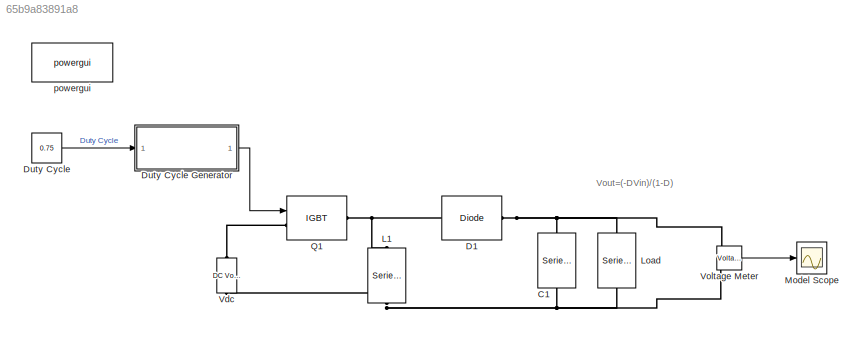
MODEL slx_65b9a83891a8
KIND model
CONFIG AbsTol = auto
CONFIG EnableMultiTasking = off
CONFIG FixedStep = auto
CONFIG MaxStep = auto
CONFIG MinStep = auto
CONFIG RelTol = 1e-3
CONFIG SampleTimeConstraint = Unconstrained
CONFIG Solver = VariableStepAuto
CONFIG SolverName = VariableStepAuto
CONFIG StartTime = 0.0
CONFIG StopTime = 1
BLOCK [Reference] C1  REF=powerlib/Elements/Series RLC Branch
  NameLocation = right
  Ports = [0, 0, 0, 0, 0, 1, 1]
  SourceBlock = powerlib/Elements/Series RLC Branch
  SourceProductBaseCode = PS
  SourceType = Series RLC Branch
BLOCK [Reference] D1  REF=powerlib/Power
Electronics/Diode
  Ports = [0, 0, 0, 0, 0, 1, 1]
  SourceBlock = powerlib/Power\nElectronics/Diode
  SourceProductBaseCode = PS
  SourceType = Diode
BLOCK [Constant] Duty Cycle
  Value = 0.75
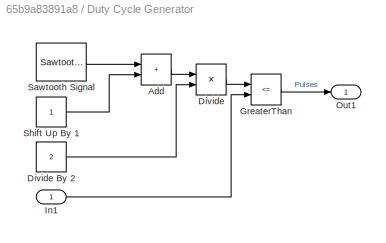
BLOCK [SubSystem] Duty Cycle Generator
  Ports = [1, 1]
  RequestExecContextInheritance = off
BLOCK [Sum] Duty Cycle Generator/Add
  IconShape = rectangular
  Ports = [2, 1]
BLOCK [Product] Duty Cycle Generator/Divide
  Inputs = */
  Ports = [2, 1]
BLOCK [Constant] Duty Cycle Generator/Divide By 2
  Value = 2
BLOCK [RelationalOperator] Duty Cycle Generator/GreaterThan
  InputSameDT = off
  Operator = <=
  OutDataTypeStr = boolean
  Ports = [2, 1]
  RndMeth = Simplest
BLOCK [Inport] Duty Cycle Generator/In1
  IconDisplay = Signal name
BLOCK [Outport] Duty Cycle Generator/Out1
  IconDisplay = Signal name
BLOCK [Reference] Duty Cycle Generator/Sawtooth Signal  REF=powerlib_meascontrol/Pulse & Signal
Generators/Sawtooth
Generator
  Ports = [0, 1]
  SourceBlock = powerlib_meascontrol/Pulse & Signal\nGenerators/Sawtooth\nGenerator
  SourceProductBaseCode = PS
  SourceType = Sawtooth Generator
BLOCK [Constant] Duty Cycle Generator/Shift Up By 1
BLOCK [Reference] L1  REF=powerlib/Elements/Series RLC Branch
  NameLocation = left
  Ports = [0, 0, 0, 0, 0, 1, 1]
  SourceBlock = powerlib/Elements/Series RLC Branch
  SourceProductBaseCode = PS
  SourceType = Series RLC Branch
BLOCK [Reference] Load  REF=powerlib/Elements/Series RLC Branch
  NameLocation = right
  Ports = [0, 0, 0, 0, 0, 1, 1]
  SourceBlock = powerlib/Elements/Series RLC Branch
  SourceProductBaseCode = PS
  SourceType = Series RLC Branch
BLOCK [Scope] Model Scope
  Floating = off
  NumInputPorts = 1
  Ports = [1]
  ScopeSpecificationString = Simulink.scopes.TimeScopeBlockCfg('CurrentConfiguration', extmgr.ConfigurationSet(extmgr.Configuration('Core','General UI',true),extmgr.Configuration('Core','Source UI',true),extmgr.Configuration('Sources','WiredSimulink',true),extmgr.Configuration('Visuals','Time Domain',true,'SerializedDisplays',{struct('MinYLimReal','25.86593','MaxYLimReal','26.46665','YLabelReal','','MinYLimMag','25.86593','Ma...<+1439ch>
BLOCK [Reference] Q1  REF=powerlib/Power
Electronics/IGBT
  Ports = [1, 0, 0, 0, 0, 1, 1]
  SourceBlock = powerlib/Power\nElectronics/IGBT
  SourceProductBaseCode = PS
  SourceType = IGBT
BLOCK [Reference] Vdc  REF=powerlib/Electrical
Sources/DC Voltage Source
  NameLocation = right
  Ports = [0, 0, 0, 0, 0, 1, 1]
  SourceBlock = powerlib/Electrical\nSources/DC Voltage Source
  SourceProductBaseCode = PS
  SourceType = DC Voltage Source
BLOCK [Reference] Voltage Meter  REF=powerlib/Measurements/Voltage Measurement
  Ports = [0, 1, 0, 0, 0, 2]
  SourceBlock = powerlib/Measurements/Voltage Measurement
  SourceProductBaseCode = PS
  SourceType = Voltage Measurement
  UserDataPersistent = on
BLOCK [Reference] powergui  REF=powerlib/powergui
  Ports = []
  Priority = 1
  SourceBlock = powerlib/powergui
  SourceProductBaseCode = PS
  SourceType = PSB option menu block
ANNOTATION (root): Vout=(-DVin)/(1-D)
LINE Duty Cycle Generator/Add:1 -> Duty Cycle Generator/Divide:1
LINE Duty Cycle Generator/Divide By 2:1 -> Duty Cycle Generator/Divide:2
LINE Duty Cycle Generator/Divide:1 -> Duty Cycle Generator/GreaterThan:1
LINE Duty Cycle Generator/GreaterThan:1 -> Duty Cycle Generator/Out1:1
LINE Duty Cycle Generator/In1:1 -> Duty Cycle Generator/GreaterThan:2
LINE Duty Cycle Generator/Sawtooth Signal:1 -> Duty Cycle Generator/Add:1
LINE Duty Cycle Generator/Shift Up By 1:1 -> Duty Cycle Generator/Add:2
LINE Duty Cycle Generator:1 -> Q1:1
LINE Duty Cycle:1 -> Duty Cycle Generator:1
LINE Voltage Meter:1 -> Model Scope:1
PNET net1: C1:LConn1 -- L1:RConn1 -- Load:LConn1 -- Vdc:LConn1 -- Voltage Meter:LConn1
PNET net2: C1:RConn1 -- D1:LConn1 -- Load:RConn1 -- Voltage Meter:LConn2
PNET net3: D1:RConn1 -- L1:LConn1 -- Q1:RConn1
PLINE Q1:LConn1 -- Vdc:RConn1
note: PNET lines group multi-terminal physical nets as a canonical sorted terminal list (undirected conserving connections); 2-terminal nets keep the pairwise PLINE form
